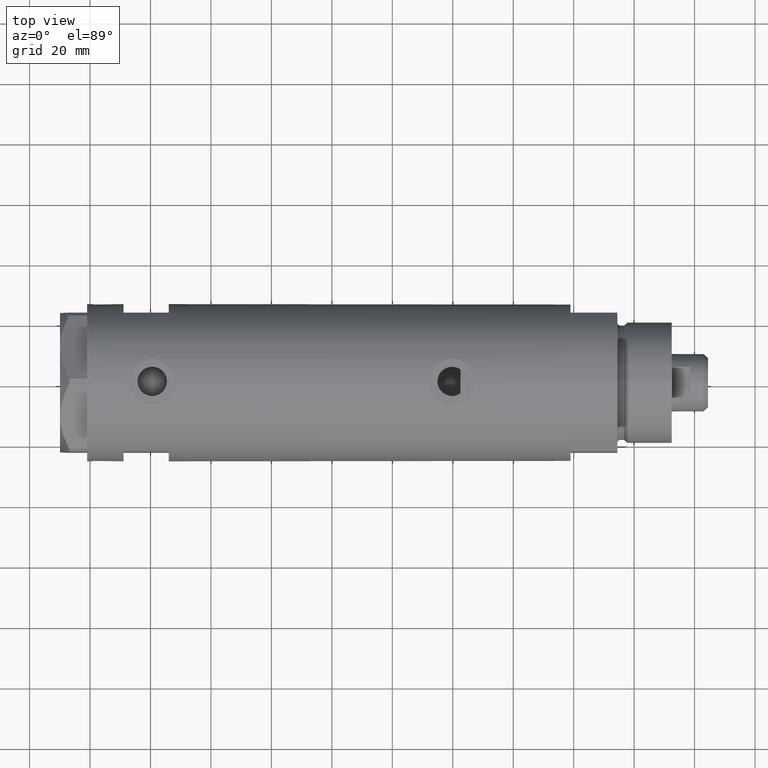
[diagram: clean part render]
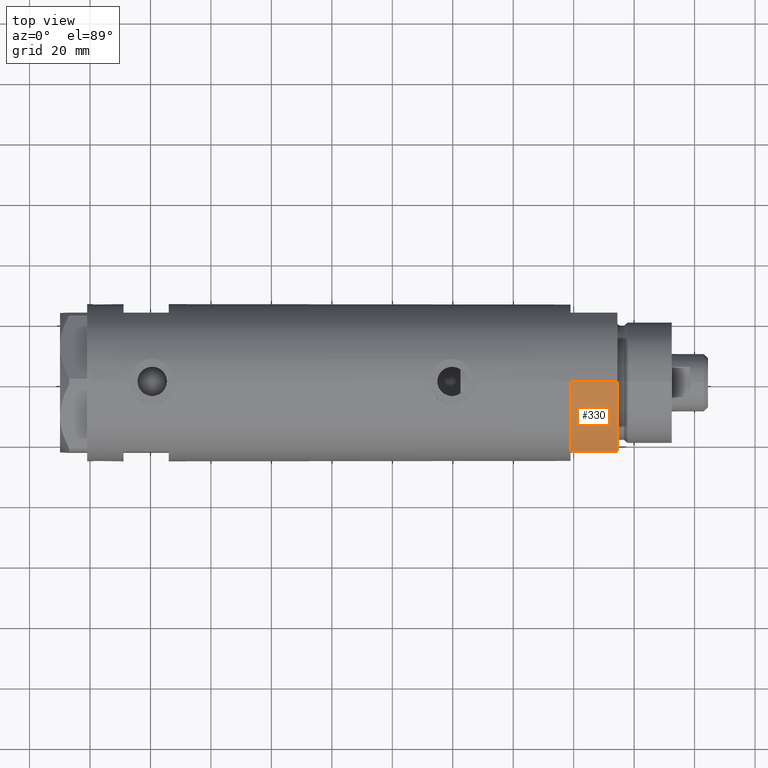
[diagram: same view with one face highlighted and labeled with its STEP entity id]
A machine part, top view. The second image highlights one B-rep face of the part: STEP entity #330.
In plain terms, the highlighted cylindrical surface (partial cylindrical patch) has radius 26 mm, axis along (-1, -0, 0).
Its self-contained STEP definition (entity closure, byte-faithful):
#13 = CIRCLE ( 'NONE', #4310, 26.00000000000000355 ) ;
#45 = DIRECTION ( 'NONE',  ( -0.000000000000000000, -0.000000000000000000, 1.000000000000000000 ) ) ;
#74 = DIRECTION ( 'NONE',  ( -1.000000000000000000, 0.000000000000000000, 0.000000000000000000 ) ) ;
#330 = ADVANCED_FACE ( 'NONE', ( #1066 ), #616, .T. ) ;
#616 = CYLINDRICAL_SURFACE ( 'NONE', #1939, 26.00000000000000355 ) ;
#620 = DIRECTION ( 'NONE',  ( 0.000000000000000000, 0.000000000000000000, 1.000000000000000000 ) ) ;
#627 = DIRECTION ( 'NONE',  ( -0.000000000000000000, -0.000000000000000000, -1.000000000000000000 ) ) ;
#875 = VERTEX_POINT ( 'NONE', #2419 ) ;
#1034 = CARTESIAN_POINT ( 'NONE',  ( -12.12435565298215145, -22.99999999999999645, 0.000000000000000000 ) ) ;
#1066 = FACE_OUTER_BOUND ( 'NONE', #5098, .T. ) ;
#1105 = CARTESIAN_POINT ( 'NONE',  ( -26.00000000000000355, 0.000000000000000000, 0.000000000000000000 ) ) ;
#1269 = ORIENTED_EDGE ( 'NONE', *, *, #2916, .T. ) ;
#1658 = EDGE_CURVE ( 'NONE', #2909, #4805, #4425, .T. ) ;
#1692 = EDGE_CURVE ( 'NONE', #2518, #2909, #2156, .T. ) ;
#1711 = CARTESIAN_POINT ( 'NONE',  ( 0.000000000000000000, 0.000000000000000000, 0.000000000000000000 ) ) ;
#1939 = AXIS2_PLACEMENT_3D ( 'NONE', #2003, #3031, #74 ) ;
#2003 = CARTESIAN_POINT ( 'NONE',  ( 0.000000000000000000, 0.000000000000000000, 15.50000000000000000 ) ) ;
#2156 = CIRCLE ( 'NONE', #5702, 26.00000000000000355 ) ;
#2419 = CARTESIAN_POINT ( 'NONE',  ( -26.00000000000000355, 0.000000000000000000, 15.50000000000000000 ) ) ;
#2518 = VERTEX_POINT ( 'NONE', #1105 ) ;
#2909 = VERTEX_POINT ( 'NONE', #4933 ) ;
#2916 = EDGE_CURVE ( 'NONE', #875, #2518, #3920, .T. ) ;
#3031 = DIRECTION ( 'NONE',  ( -0.000000000000000000, -0.000000000000000000, -1.000000000000000000 ) ) ;
#3381 = CARTESIAN_POINT ( 'NONE',  ( -12.12435565298215323, -22.99999999999999645, 15.50000000000000000 ) ) ;
#3668 = ORIENTED_EDGE ( 'NONE', *, *, #1658, .T. ) ;
#3693 = DIRECTION ( 'NONE',  ( 1.000000000000000000, 0.000000000000000000, 0.000000000000000000 ) ) ;
#3920 = LINE ( 'NONE', #4464, #4002 ) ;
#3982 = CARTESIAN_POINT ( 'NONE',  ( 0.000000000000000000, 0.000000000000000000, 15.50000000000000000 ) ) ;
#4002 = VECTOR ( 'NONE', #627, 1000.000000000000000 ) ;
#4116 = ORIENTED_EDGE ( 'NONE', *, *, #4576, .F. ) ;
#4310 = AXIS2_PLACEMENT_3D ( 'NONE', #3982, #620, #5984 ) ;
#4425 = LINE ( 'NONE', #1034, #5812 ) ;
#4464 = CARTESIAN_POINT ( 'NONE',  ( -26.00000000000000355, 0.000000000000000000, 15.50000000000000000 ) ) ;
#4576 = EDGE_CURVE ( 'NONE', #875, #4805, #13, .T. ) ;
#4805 = VERTEX_POINT ( 'NONE', #3381 ) ;
#4933 = CARTESIAN_POINT ( 'NONE',  ( -12.12435565298215501, -22.99999999999999645, 0.000000000000000000 ) ) ;
#5098 = EDGE_LOOP ( 'NONE', ( #4116, #1269, #5110, #3668 ) ) ;
#5110 = ORIENTED_EDGE ( 'NONE', *, *, #1692, .T. ) ;
#5702 = AXIS2_PLACEMENT_3D ( 'NONE', #1711, #6013, #3693 ) ;
#5812 = VECTOR ( 'NONE', #45, 1000.000000000000000 ) ;
#5984 = DIRECTION ( 'NONE',  ( 1.000000000000000000, 0.000000000000000000, 0.000000000000000000 ) ) ;
#6013 = DIRECTION ( 'NONE',  ( 0.000000000000000000, 0.000000000000000000, 1.000000000000000000 ) ) ;